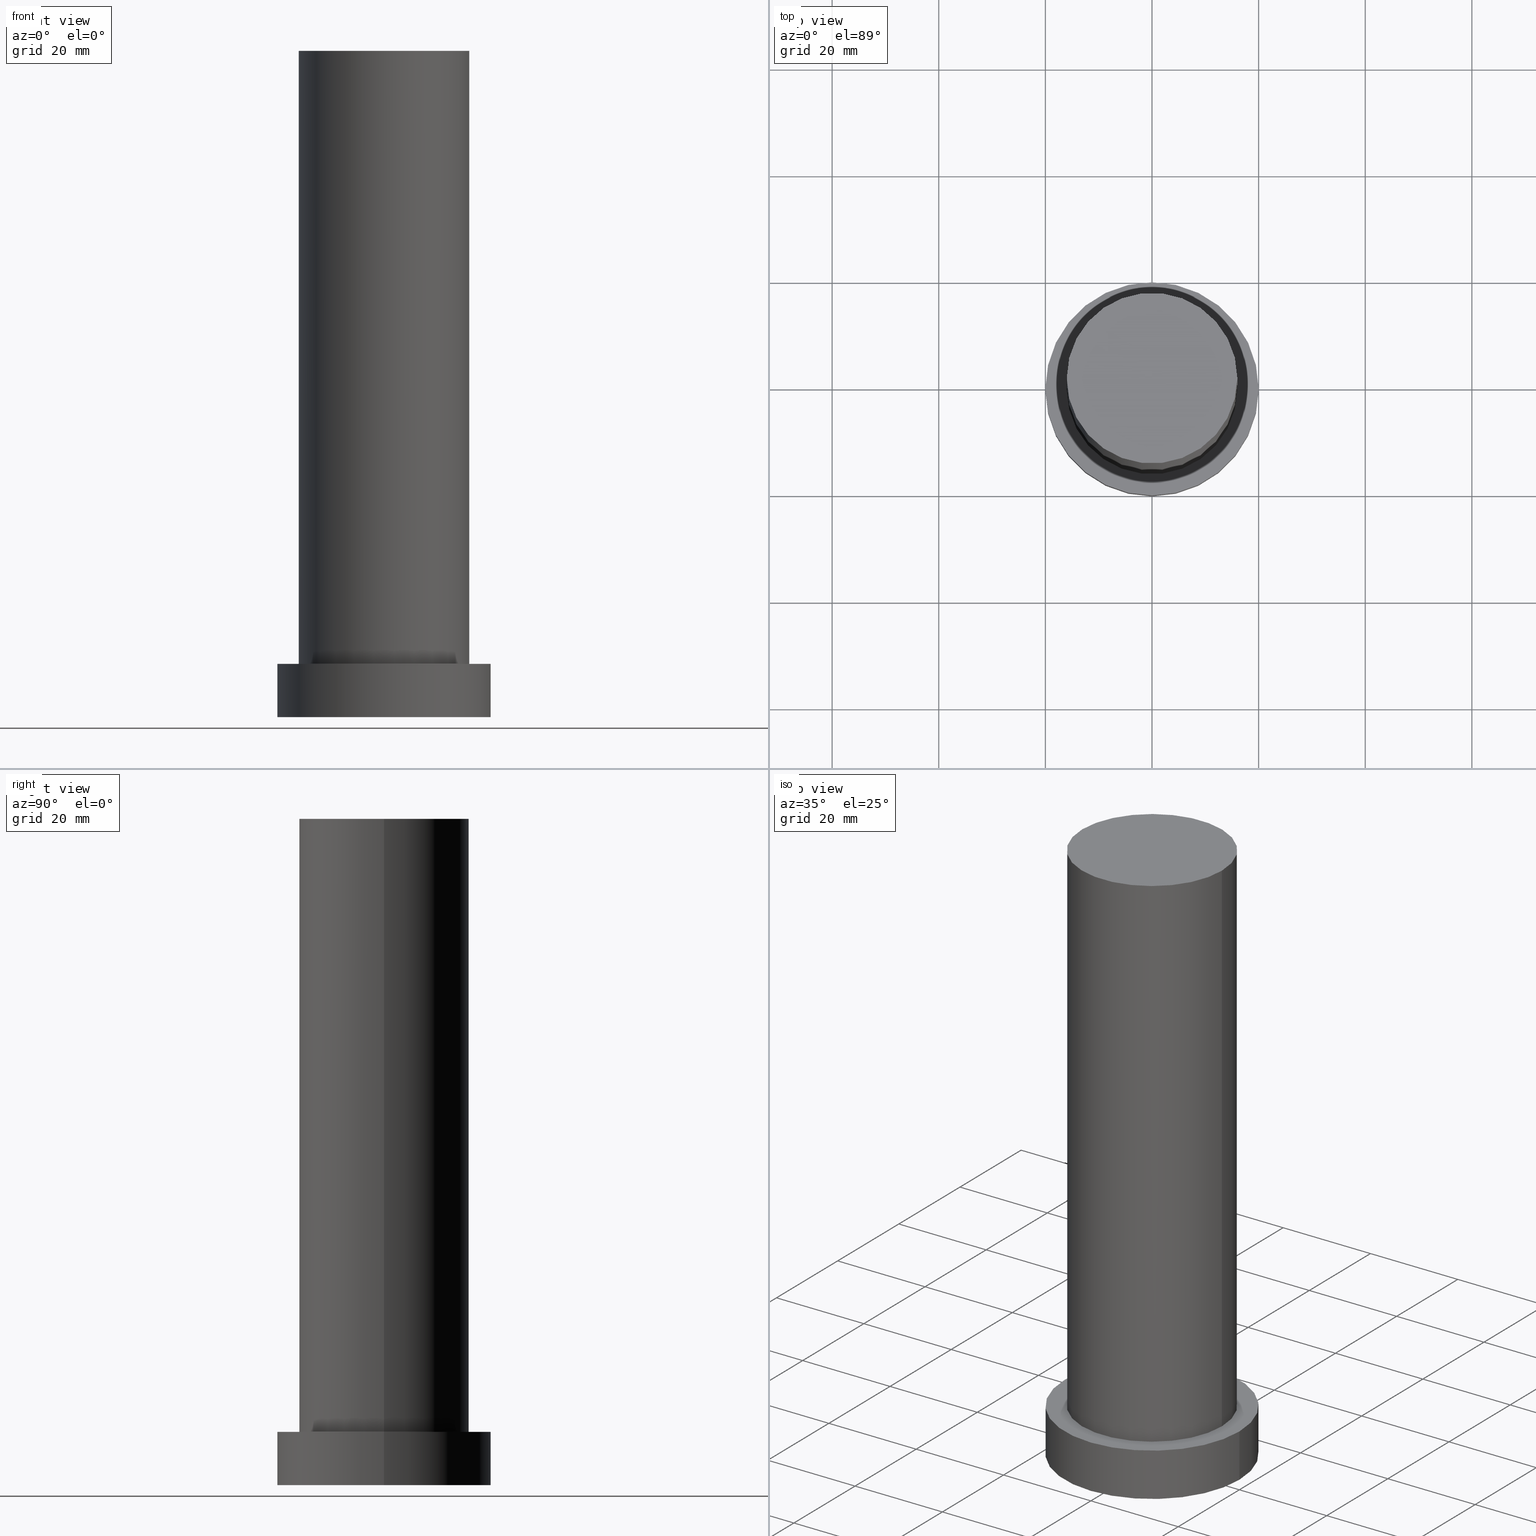
[diagram: canonical four-view strip — front | top / right | iso, engineering-drawing reading convention]
A machine part, canonical four-view strip (front | top / right | iso — engineering-drawing reading convention). The complete STEP part file that produces these views, byte-faithful:
ISO-10303-21;
HEADER;
FILE_DESCRIPTION (( 'STEP AP203' ),
    '1' );
FILE_NAME ('dc46.STEP',
    '2023-02-12T10:27:08',
    ( '' ),
    ( '' ),
    'SwSTEP 2.0',
    'SolidWorks 2019',
    '' );
FILE_SCHEMA (( 'CONFIG_CONTROL_DESIGN' ));
ENDSEC;

DATA;
#1 = DIRECTION ( 'NONE',  ( 0.000000000000000000, 0.000000000000000000, 1.000000000000000000 ) ) ;
#2 = ADVANCED_FACE ( 'NONE', ( #39 ), #176, .T. ) ;
#3 = DIRECTION ( 'NONE',  ( 0.000000000000000000, 0.000000000000000000, 1.000000000000000000 ) ) ;
#4 = FACE_OUTER_BOUND ( 'NONE', #177, .T. ) ;
#5 = ADVANCED_BREP_SHAPE_REPRESENTATION ( 'dc46', ( #127, #112 ), #191 ) ;
#6 = CARTESIAN_POINT ( 'NONE',  ( 0.000000000000000000, 0.000000000000000000, 10.00000000000000000 ) ) ;
#7 = EDGE_CURVE ( 'NONE', #215, #85, #124, .T. ) ;
#8 = APPLICATION_PROTOCOL_DEFINITION ( 'international standard', 'config_control_design', 1994, #239 ) ;
#9 = APPROVAL_STATUS ( 'not_yet_approved' ) ;
#10 = APPROVAL_PERSON_ORGANIZATION ( #210, #160, #30 ) ;
#11 = SHAPE_DEFINITION_REPRESENTATION ( #164, #5 ) ;
#12 = ADVANCED_FACE ( 'NONE', ( #201 ), #154, .T. ) ;
#13 = EDGE_LOOP ( 'NONE', ( #251, #175, #75, #80 ) ) ;
#14 = DATE_AND_TIME ( #34, #187 ) ;
#15 = ORIENTED_EDGE ( 'NONE', *, *, #56, .F. ) ;
#16 = CARTESIAN_POINT ( 'NONE',  ( 20.00000000000000000, 2.449293598294706513E-15, 10.00000000000000000 ) ) ;
#17 = ADVANCED_FACE ( 'NONE', ( #18 ), #83, .T. ) ;
#18 = FACE_OUTER_BOUND ( 'NONE', #99, .T. ) ;
#19 = CIRCLE ( 'NONE', #58, 16.00000000000000000 ) ;
#20 = ORIENTED_EDGE ( 'NONE', *, *, #241, .T. ) ;
#21 = CIRCLE ( 'NONE', #59, 16.00000000000000000 ) ;
#22 = CARTESIAN_POINT ( 'NONE',  ( 0.000000000000000000, 0.000000000000000000, 125.0000000000000000 ) ) ;
#23 = PRODUCT ( 'dc46', 'dc46', '', ( #114 ) ) ;
#24 = CARTESIAN_POINT ( 'NONE',  ( 0.000000000000000000, 0.000000000000000000, 10.00000000000000000 ) ) ;
#25 = LINE ( 'NONE', #27, #180 ) ;
#26 = VERTEX_POINT ( 'NONE', #16 ) ;
#27 = CARTESIAN_POINT ( 'NONE',  ( -16.00000000000000000, 0.000000000000000000, 125.0000000000000000 ) ) ;
#28 = CC_DESIGN_PERSON_AND_ORGANIZATION_ASSIGNMENT ( #174, #132, ( #23 ) ) ;
#29 = CARTESIAN_POINT ( 'NONE',  ( 16.00000000000000000, 1.959434878635765131E-15, 125.0000000000000000 ) ) ;
#30 = APPROVAL_ROLE ( '' ) ;
#31 = PERSON_AND_ORGANIZATION ( #82, #147 ) ;
#32 = DATE_TIME_ROLE ( 'classification_date' ) ;
#33 = LINE ( 'NONE', #162, #84 ) ;
#34 = CALENDAR_DATE ( 2023, 12, 2 ) ;
#35 = EDGE_CURVE ( 'NONE', #26, #119, #74, .T. ) ;
#36 = ORIENTED_EDGE ( 'NONE', *, *, #7, .T. ) ;
#37 = VERTEX_POINT ( 'NONE', #103 ) ;
#38 = EDGE_LOOP ( 'NONE', ( #15, #129, #20, #196 ) ) ;
#39 = FACE_OUTER_BOUND ( 'NONE', #123, .T. ) ;
#40 = APPROVAL ( #55, 'NEUR�EN�' ) ;
#41 =( NAMED_UNIT ( * ) SI_UNIT ( $, .STERADIAN. ) SOLID_ANGLE_UNIT ( ) );
#42 = CYLINDRICAL_SURFACE ( 'NONE', #224, 16.00000000000000000 ) ;
#43 = SECURITY_CLASSIFICATION ( '', '', #53 ) ;
#44 = CARTESIAN_POINT ( 'NONE',  ( -20.00000000000000000, 0.000000000000000000, 10.00000000000000000 ) ) ;
#45 = DIRECTION ( 'NONE',  ( 0.000000000000000000, 0.000000000000000000, 1.000000000000000000 ) ) ;
#46 = CC_DESIGN_DATE_AND_TIME_ASSIGNMENT ( #214, #32, ( #43 ) ) ;
#47 = DIRECTION ( 'NONE',  ( 1.000000000000000000, 0.000000000000000000, -0.000000000000000000 ) ) ;
#48 = DIRECTION ( 'NONE',  ( 0.000000000000000000, 0.000000000000000000, 1.000000000000000000 ) ) ;
#49 = EDGE_CURVE ( 'NONE', #37, #236, #62, .T. ) ;
#50 = APPROVAL_DATE_TIME ( #195, #160 ) ;
#51 = COORDINATED_UNIVERSAL_TIME_OFFSET ( 1, 0, .AHEAD. ) ;
#52 = DIRECTION ( 'NONE',  ( 0.000000000000000000, 0.000000000000000000, 1.000000000000000000 ) ) ;
#53 = SECURITY_CLASSIFICATION_LEVEL ( 'unclassified' ) ;
#54 = ORIENTED_EDGE ( 'NONE', *, *, #49, .F. ) ;
#55 = APPROVAL_STATUS ( 'not_yet_approved' ) ;
#56 = EDGE_CURVE ( 'NONE', #26, #215, #33, .T. ) ;
#57 = DIRECTION ( 'NONE',  ( 1.000000000000000000, 0.000000000000000000, -0.000000000000000000 ) ) ;
#58 = AXIS2_PLACEMENT_3D ( 'NONE', #24, #149, #92 ) ;
#59 = AXIS2_PLACEMENT_3D ( 'NONE', #22, #45, #227 ) ;
#60 = PRODUCT_DEFINITION_FORMATION_WITH_SPECIFIED_SOURCE ( 'LIBOVOLN�', '', #23, .NOT_KNOWN. ) ;
#61 = APPLICATION_CONTEXT ( 'configuration controlled 3d designs of mechanical parts and assemblies' ) ;
#62 = CIRCLE ( 'NONE', #205, 16.00000000000000000 ) ;
#63 = DIRECTION ( 'NONE',  ( -0.000000000000000000, -0.000000000000000000, -1.000000000000000000 ) ) ;
#64 = CARTESIAN_POINT ( 'NONE',  ( 0.000000000000000000, 0.000000000000000000, 125.0000000000000000 ) ) ;
#65 = DIRECTION ( 'NONE',  ( -0.000000000000000000, -0.000000000000000000, -1.000000000000000000 ) ) ;
#66 = CARTESIAN_POINT ( 'NONE',  ( 16.00000000000000000, 1.959434878635765131E-15, 125.0000000000000000 ) ) ;
#67 = CARTESIAN_POINT ( 'NONE',  ( 0.000000000000000000, 0.000000000000000000, 10.00000000000000000 ) ) ;
#68 = LOCAL_TIME ( 11, 27, 8.000000000000000000, #100 ) ;
#69 = CC_DESIGN_PERSON_AND_ORGANIZATION_ASSIGNMENT ( #233, #115, ( #60 ) ) ;
#70 = PLANE ( 'NONE',  #104 ) ;
#71 =( LENGTH_UNIT ( ) NAMED_UNIT ( * ) SI_UNIT ( .MILLI., .METRE. ) );
#72 = EDGE_CURVE ( 'NONE', #85, #215, #179, .T. ) ;
#73 = CALENDAR_DATE ( 2023, 12, 2 ) ;
#74 = CIRCLE ( 'NONE', #221, 20.00000000000000000 ) ;
#75 = ORIENTED_EDGE ( 'NONE', *, *, #189, .T. ) ;
#76 = DATE_AND_TIME ( #73, #170 ) ;
#77 = ORIENTED_EDGE ( 'NONE', *, *, #220, .T. ) ;
#78 = LOCAL_TIME ( 11, 27, 8.000000000000000000, #51 ) ;
#79 = PERSON_AND_ORGANIZATION ( #82, #147 ) ;
#80 = ORIENTED_EDGE ( 'NONE', *, *, #199, .F. ) ;
#81 = CC_DESIGN_APPROVAL ( #40, ( #60 ) ) ;
#82 = PERSON ( 'NEUR�EN�', 'NEUR�EN�', 'NEUR�EN�', ('NEUR�EN�'), ('NEUR�EN�'), ('NEUR�EN�') ) ;
#83 = CYLINDRICAL_SURFACE ( 'NONE', #173, 20.00000000000000000 ) ;
#84 = VECTOR ( 'NONE', #242, 1000.000000000000000 ) ;
#85 = VERTEX_POINT ( 'NONE', #109 ) ;
#86 = CC_DESIGN_SECURITY_CLASSIFICATION ( #43, ( #60 ) ) ;
#87 = FACE_BOUND ( 'NONE', #223, .T. ) ;
#88 = DIRECTION ( 'NONE',  ( -0.000000000000000000, -0.000000000000000000, -1.000000000000000000 ) ) ;
#89 = AXIS2_PLACEMENT_3D ( 'NONE', #218, #136, #122 ) ;
#90 = CARTESIAN_POINT ( 'NONE',  ( 16.00000000000000000, 1.959434878635765131E-15, 10.00000000000000000 ) ) ;
#91 = AXIS2_PLACEMENT_3D ( 'NONE', #245, #3, #226 ) ;
#92 = DIRECTION ( 'NONE',  ( 1.000000000000000000, 0.000000000000000000, 0.000000000000000000 ) ) ;
#93 = DIRECTION ( 'NONE',  ( -0.000000000000000000, -0.000000000000000000, -1.000000000000000000 ) ) ;
#94 = PRODUCT_DEFINITION ( 'NEZN�M�', '', #60, #157 ) ;
#95 = PERSON_AND_ORGANIZATION_ROLE ( 'creator' ) ;
#96 = VECTOR ( 'NONE', #65, 1000.000000000000000 ) ;
#97 = PERSON_AND_ORGANIZATION ( #82, #147 ) ;
#98 = PERSON_AND_ORGANIZATION ( #82, #147 ) ;
#99 = EDGE_LOOP ( 'NONE', ( #156, #110, #36, #253 ) ) ;
#100 = COORDINATED_UNIVERSAL_TIME_OFFSET ( 1, 0, .AHEAD. ) ;
#101 = ORIENTED_EDGE ( 'NONE', *, *, #151, .T. ) ;
#102 = ORIENTED_EDGE ( 'NONE', *, *, #72, .F. ) ;
#103 = CARTESIAN_POINT ( 'NONE',  ( -16.00000000000000000, 0.000000000000000000, 125.0000000000000000 ) ) ;
#104 = AXIS2_PLACEMENT_3D ( 'NONE', #225, #150, #47 ) ;
#105 = PRODUCT_RELATED_PRODUCT_CATEGORY ( 'detail', '', ( #23 ) ) ;
#106 = ORIENTED_EDGE ( 'NONE', *, *, #141, .F. ) ;
#107 =( NAMED_UNIT ( * ) PLANE_ANGLE_UNIT ( ) SI_UNIT ( $, .RADIAN. ) );
#108 = CYLINDRICAL_SURFACE ( 'NONE', #197, 20.00000000000000000 ) ;
#109 = CARTESIAN_POINT ( 'NONE',  ( -20.00000000000000000, 0.000000000000000000, 0.000000000000000000 ) ) ;
#110 = ORIENTED_EDGE ( 'NONE', *, *, #56, .T. ) ;
#111 = PLANE ( 'NONE',  #203 ) ;
#112 = AXIS2_PLACEMENT_3D ( 'NONE', #139, #48, #155 ) ;
#113 = CALENDAR_DATE ( 2023, 12, 2 ) ;
#114 = MECHANICAL_CONTEXT ( 'NONE', #61, 'mechanical' ) ;
#115 = PERSON_AND_ORGANIZATION_ROLE ( 'design_supplier' ) ;
#116 = CC_DESIGN_APPROVAL ( #160, ( #94 ) ) ;
#117 = PERSON_AND_ORGANIZATION ( #82, #147 ) ;
#118 = CC_DESIGN_PERSON_AND_ORGANIZATION_ASSIGNMENT ( #79, #134, ( #94 ) ) ;
#119 = VERTEX_POINT ( 'NONE', #148 ) ;
#120 = EDGE_LOOP ( 'NONE', ( #138, #77 ) ) ;
#121 = CARTESIAN_POINT ( 'NONE',  ( 0.000000000000000000, 0.000000000000000000, 10.00000000000000000 ) ) ;
#122 = DIRECTION ( 'NONE',  ( -1.000000000000000000, 0.000000000000000000, 0.000000000000000000 ) ) ;
#123 = EDGE_LOOP ( 'NONE', ( #106, #54, #234, #101 ) ) ;
#124 = CIRCLE ( 'NONE', #133, 20.00000000000000000 ) ;
#125 = CIRCLE ( 'NONE', #244, 20.00000000000000000 ) ;
#126 = CC_DESIGN_PERSON_AND_ORGANIZATION_ASSIGNMENT ( #98, #95, ( #60 ) ) ;
#127 = MANIFOLD_SOLID_BREP ( 'P�idat vysunut�m3', #163 ) ;
#128 = FACE_OUTER_BOUND ( 'NONE', #38, .T. ) ;
#129 = ORIENTED_EDGE ( 'NONE', *, *, #181, .F. ) ;
#130 = CARTESIAN_POINT ( 'NONE',  ( 0.000000000000000000, 0.000000000000000000, 10.00000000000000000 ) ) ;
#131 = FACE_OUTER_BOUND ( 'NONE', #13, .T. ) ;
#132 = PERSON_AND_ORGANIZATION_ROLE ( 'design_owner' ) ;
#133 = AXIS2_PLACEMENT_3D ( 'NONE', #250, #178, #159 ) ;
#134 = PERSON_AND_ORGANIZATION_ROLE ( 'creator' ) ;
#135 = ADVANCED_FACE ( 'NONE', ( #4 ), #70, .F. ) ;
#136 = DIRECTION ( 'NONE',  ( -0.000000000000000000, -0.000000000000000000, -1.000000000000000000 ) ) ;
#137 = PERSON_AND_ORGANIZATION_ROLE ( 'classification_officer' ) ;
#138 = ORIENTED_EDGE ( 'NONE', *, *, #49, .T. ) ;
#139 = CARTESIAN_POINT ( 'NONE',  ( 0.000000000000000000, 0.000000000000000000, 0.000000000000000000 ) ) ;
#140 = VECTOR ( 'NONE', #204, 1000.000000000000000 ) ;
#141 = EDGE_CURVE ( 'NONE', #236, #206, #185, .T. ) ;
#142 = ORIENTED_EDGE ( 'NONE', *, *, #7, .F. ) ;
#143 = LOCAL_TIME ( 11, 27, 8.000000000000000000, #158 ) ;
#144 = APPROVAL ( #168, 'NEUR�EN�' ) ;
#145 = CARTESIAN_POINT ( 'NONE',  ( 0.000000000000000000, 0.000000000000000000, 10.00000000000000000 ) ) ;
#146 = CARTESIAN_POINT ( 'NONE',  ( 0.000000000000000000, 0.000000000000000000, 0.000000000000000000 ) ) ;
#147 = ORGANIZATION ( 'NEUR�EN�', 'NEUR�EN�', '' ) ;
#148 = CARTESIAN_POINT ( 'NONE',  ( -20.00000000000000000, 0.000000000000000000, 10.00000000000000000 ) ) ;
#149 = DIRECTION ( 'NONE',  ( 0.000000000000000000, 0.000000000000000000, 1.000000000000000000 ) ) ;
#150 = DIRECTION ( 'NONE',  ( 0.000000000000000000, 0.000000000000000000, 1.000000000000000000 ) ) ;
#151 = EDGE_CURVE ( 'NONE', #186, #206, #19, .T. ) ;
#152 = APPROVAL_DATE_TIME ( #76, #40 ) ;
#153 = AXIS2_PLACEMENT_3D ( 'NONE', #64, #52, #57 ) ;
#154 = PLANE ( 'NONE',  #153 ) ;
#155 = DIRECTION ( 'NONE',  ( 1.000000000000000000, 0.000000000000000000, 0.000000000000000000 ) ) ;
#156 = ORIENTED_EDGE ( 'NONE', *, *, #35, .F. ) ;
#157 = DESIGN_CONTEXT ( 'detailed design', #239, 'design' ) ;
#158 = COORDINATED_UNIVERSAL_TIME_OFFSET ( 1, 0, .AHEAD. ) ;
#159 = DIRECTION ( 'NONE',  ( 1.000000000000000000, 0.000000000000000000, 0.000000000000000000 ) ) ;
#160 = APPROVAL ( #9, 'NEUR�EN�' ) ;
#161 = DIRECTION ( 'NONE',  ( 0.000000000000000000, 0.000000000000000000, 1.000000000000000000 ) ) ;
#162 = CARTESIAN_POINT ( 'NONE',  ( 20.00000000000000000, 2.449293598294706513E-15, 10.00000000000000000 ) ) ;
#163 = CLOSED_SHELL ( 'NONE', ( #171, #17, #247, #228, #135, #2, #12 ) ) ;
#164 = PRODUCT_DEFINITION_SHAPE ( 'NONE', 'NONE',  #94 ) ;
#165 = DIRECTION ( 'NONE',  ( -0.000000000000000000, -0.000000000000000000, -1.000000000000000000 ) ) ;
#166 = DIRECTION ( 'NONE',  ( -1.000000000000000000, 0.000000000000000000, 0.000000000000000000 ) ) ;
#167 = CARTESIAN_POINT ( 'NONE',  ( 20.00000000000000000, 2.449293598294706513E-15, 0.000000000000000000 ) ) ;
#168 = APPROVAL_STATUS ( 'not_yet_approved' ) ;
#169 = COORDINATED_UNIVERSAL_TIME_OFFSET ( 1, 0, .AHEAD. ) ;
#170 = LOCAL_TIME ( 11, 27, 8.000000000000000000, #169 ) ;
#171 = ADVANCED_FACE ( 'NONE', ( #131 ), #42, .T. ) ;
#172 = ORIENTED_EDGE ( 'NONE', *, *, #181, .T. ) ;
#173 = AXIS2_PLACEMENT_3D ( 'NONE', #121, #63, #198 ) ;
#174 = PERSON_AND_ORGANIZATION ( #82, #147 ) ;
#175 = ORIENTED_EDGE ( 'NONE', *, *, #141, .T. ) ;
#176 = CYLINDRICAL_SURFACE ( 'NONE', #89, 16.00000000000000000 ) ;
#177 = EDGE_LOOP ( 'NONE', ( #102, #142 ) ) ;
#178 = DIRECTION ( 'NONE',  ( 0.000000000000000000, 0.000000000000000000, 1.000000000000000000 ) ) ;
#179 = CIRCLE ( 'NONE', #216, 20.00000000000000000 ) ;
#180 = VECTOR ( 'NONE', #88, 1000.000000000000000 ) ;
#181 = EDGE_CURVE ( 'NONE', #119, #26, #125, .T. ) ;
#182 = LINE ( 'NONE', #44, #96 ) ;
#183 = DIRECTION ( 'NONE',  ( 0.000000000000000000, 0.000000000000000000, 1.000000000000000000 ) ) ;
#184 = DIRECTION ( 'NONE',  ( 1.000000000000000000, 0.000000000000000000, 0.000000000000000000 ) ) ;
#185 = LINE ( 'NONE', #66, #140 ) ;
#186 = VERTEX_POINT ( 'NONE', #243 ) ;
#187 = LOCAL_TIME ( 11, 27, 8.000000000000000000, #192 ) ;
#188 = DIRECTION ( 'NONE',  ( 1.000000000000000000, 0.000000000000000000, -0.000000000000000000 ) ) ;
#189 = EDGE_CURVE ( 'NONE', #206, #186, #200, .T. ) ;
#190 = DATE_AND_TIME ( #235, #143 ) ;
#191 =( GEOMETRIC_REPRESENTATION_CONTEXT ( 3 ) GLOBAL_UNCERTAINTY_ASSIGNED_CONTEXT ( ( #209 ) ) GLOBAL_UNIT_ASSIGNED_CONTEXT ( ( #71, #107, #41 ) ) REPRESENTATION_CONTEXT ( 'NONE', 'WORKASPACE' ) );
#192 = COORDINATED_UNIVERSAL_TIME_OFFSET ( 1, 0, .AHEAD. ) ;
#193 = APPROVAL_ROLE ( '' ) ;
#194 = ORIENTED_EDGE ( 'NONE', *, *, #151, .F. ) ;
#195 = DATE_AND_TIME ( #217, #68 ) ;
#196 = ORIENTED_EDGE ( 'NONE', *, *, #72, .T. ) ;
#197 = AXIS2_PLACEMENT_3D ( 'NONE', #6, #93, #248 ) ;
#198 = DIRECTION ( 'NONE',  ( -1.000000000000000000, 0.000000000000000000, 0.000000000000000000 ) ) ;
#199 = EDGE_CURVE ( 'NONE', #37, #186, #25, .T. ) ;
#200 = CIRCLE ( 'NONE', #91, 16.00000000000000000 ) ;
#201 = FACE_OUTER_BOUND ( 'NONE', #120, .T. ) ;
#202 = ORIENTED_EDGE ( 'NONE', *, *, #35, .T. ) ;
#203 = AXIS2_PLACEMENT_3D ( 'NONE', #67, #207, #188 ) ;
#204 = DIRECTION ( 'NONE',  ( -0.000000000000000000, -0.000000000000000000, -1.000000000000000000 ) ) ;
#205 = AXIS2_PLACEMENT_3D ( 'NONE', #254, #240, #231 ) ;
#206 = VERTEX_POINT ( 'NONE', #90 ) ;
#207 = DIRECTION ( 'NONE',  ( 0.000000000000000000, 0.000000000000000000, 1.000000000000000000 ) ) ;
#208 = DIRECTION ( 'NONE',  ( 1.000000000000000000, 0.000000000000000000, 0.000000000000000000 ) ) ;
#209 = UNCERTAINTY_MEASURE_WITH_UNIT (LENGTH_MEASURE( 1.000000000000000082E-05 ), #71, 'distance_accuracy_value', 'NONE');
#210 = PERSON_AND_ORGANIZATION ( #82, #147 ) ;
#211 = DATE_TIME_ROLE ( 'creation_date' ) ;
#212 = APPROVAL_PERSON_ORGANIZATION ( #117, #144, #193 ) ;
#213 = ORIENTED_EDGE ( 'NONE', *, *, #189, .F. ) ;
#214 = DATE_AND_TIME ( #113, #78 ) ;
#215 = VERTEX_POINT ( 'NONE', #167 ) ;
#216 = AXIS2_PLACEMENT_3D ( 'NONE', #146, #1, #184 ) ;
#217 = CALENDAR_DATE ( 2023, 12, 2 ) ;
#218 = CARTESIAN_POINT ( 'NONE',  ( 0.000000000000000000, 0.000000000000000000, 125.0000000000000000 ) ) ;
#219 = CC_DESIGN_APPROVAL ( #144, ( #43 ) ) ;
#220 = EDGE_CURVE ( 'NONE', #236, #37, #21, .T. ) ;
#221 = AXIS2_PLACEMENT_3D ( 'NONE', #145, #161, #222 ) ;
#222 = DIRECTION ( 'NONE',  ( 1.000000000000000000, 0.000000000000000000, 0.000000000000000000 ) ) ;
#223 = EDGE_LOOP ( 'NONE', ( #194, #213 ) ) ;
#224 = AXIS2_PLACEMENT_3D ( 'NONE', #255, #165, #166 ) ;
#225 = CARTESIAN_POINT ( 'NONE',  ( 0.000000000000000000, 0.000000000000000000, 0.000000000000000000 ) ) ;
#226 = DIRECTION ( 'NONE',  ( 1.000000000000000000, 0.000000000000000000, 0.000000000000000000 ) ) ;
#227 = DIRECTION ( 'NONE',  ( 1.000000000000000000, 0.000000000000000000, 0.000000000000000000 ) ) ;
#228 = ADVANCED_FACE ( 'NONE', ( #87, #246 ), #111, .T. ) ;
#229 = APPROVAL_ROLE ( '' ) ;
#230 = APPROVAL_DATE_TIME ( #14, #144 ) ;
#231 = DIRECTION ( 'NONE',  ( 1.000000000000000000, 0.000000000000000000, 0.000000000000000000 ) ) ;
#232 = CC_DESIGN_DATE_AND_TIME_ASSIGNMENT ( #190, #211, ( #94 ) ) ;
#233 = PERSON_AND_ORGANIZATION ( #82, #147 ) ;
#234 = ORIENTED_EDGE ( 'NONE', *, *, #199, .T. ) ;
#235 = CALENDAR_DATE ( 2023, 12, 2 ) ;
#236 = VERTEX_POINT ( 'NONE', #29 ) ;
#237 = CC_DESIGN_PERSON_AND_ORGANIZATION_ASSIGNMENT ( #31, #137, ( #43 ) ) ;
#238 = APPROVAL_PERSON_ORGANIZATION ( #97, #40, #229 ) ;
#239 = APPLICATION_CONTEXT ( 'configuration controlled 3d designs of mechanical parts and assemblies' ) ;
#240 = DIRECTION ( 'NONE',  ( 0.000000000000000000, 0.000000000000000000, 1.000000000000000000 ) ) ;
#241 = EDGE_CURVE ( 'NONE', #119, #85, #182, .T. ) ;
#242 = DIRECTION ( 'NONE',  ( -0.000000000000000000, -0.000000000000000000, -1.000000000000000000 ) ) ;
#243 = CARTESIAN_POINT ( 'NONE',  ( -16.00000000000000000, 0.000000000000000000, 10.00000000000000000 ) ) ;
#244 = AXIS2_PLACEMENT_3D ( 'NONE', #130, #183, #208 ) ;
#245 = CARTESIAN_POINT ( 'NONE',  ( 0.000000000000000000, 0.000000000000000000, 10.00000000000000000 ) ) ;
#246 = FACE_OUTER_BOUND ( 'NONE', #252, .T. ) ;
#247 = ADVANCED_FACE ( 'NONE', ( #128 ), #108, .T. ) ;
#248 = DIRECTION ( 'NONE',  ( -1.000000000000000000, 0.000000000000000000, 0.000000000000000000 ) ) ;
#249 = APPLICATION_PROTOCOL_DEFINITION ( 'international standard', 'config_control_design', 1994, #61 ) ;
#250 = CARTESIAN_POINT ( 'NONE',  ( 0.000000000000000000, 0.000000000000000000, 0.000000000000000000 ) ) ;
#251 = ORIENTED_EDGE ( 'NONE', *, *, #220, .F. ) ;
#252 = EDGE_LOOP ( 'NONE', ( #172, #202 ) ) ;
#253 = ORIENTED_EDGE ( 'NONE', *, *, #241, .F. ) ;
#254 = CARTESIAN_POINT ( 'NONE',  ( 0.000000000000000000, 0.000000000000000000, 125.0000000000000000 ) ) ;
#255 = CARTESIAN_POINT ( 'NONE',  ( 0.000000000000000000, 0.000000000000000000, 125.0000000000000000 ) ) ;
ENDSEC;
END-ISO-10303-21;
